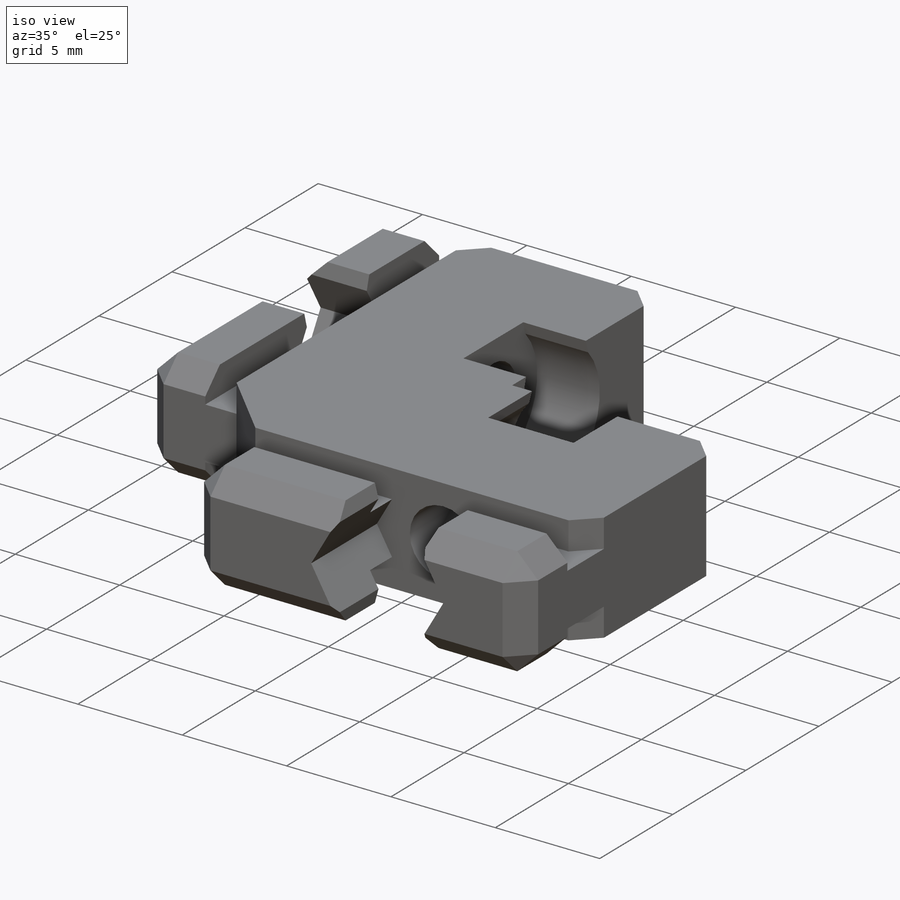
[diagram: iso view]
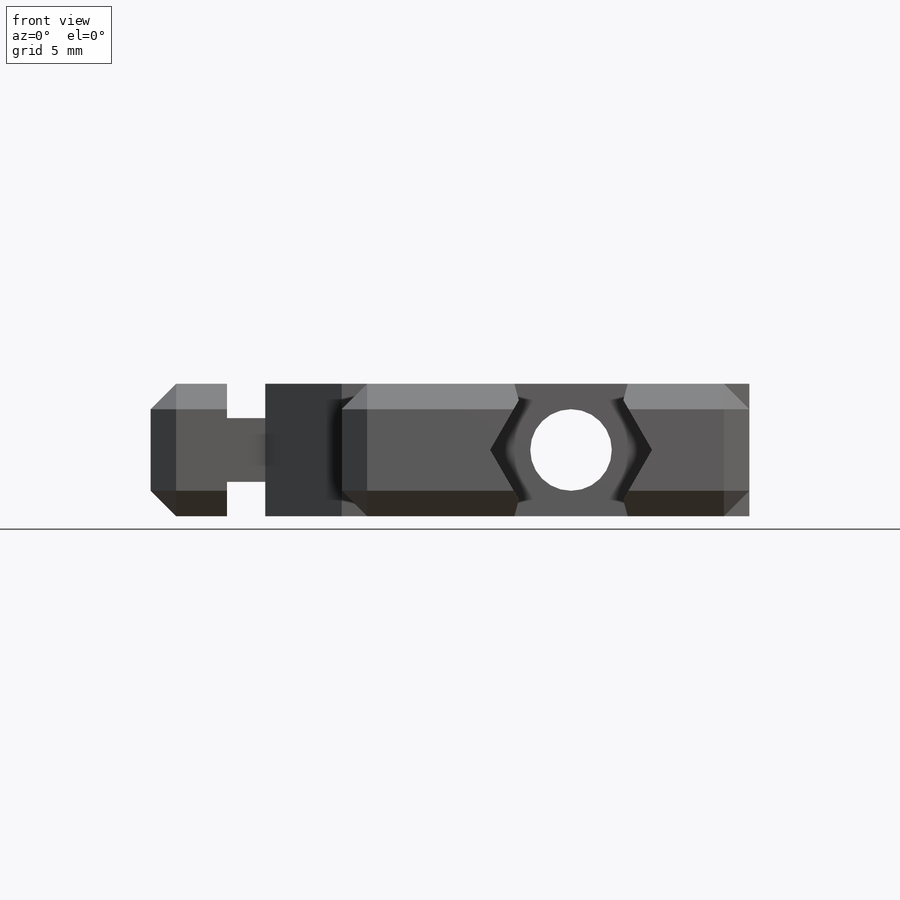
[diagram: front view]
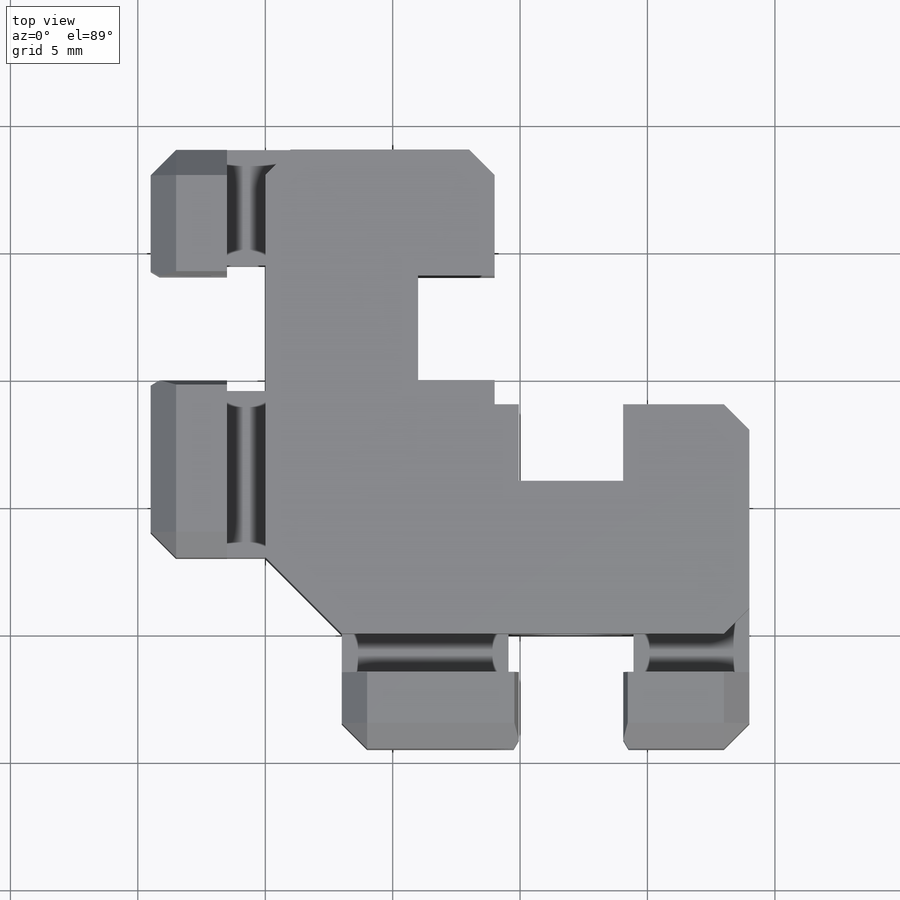
[diagram: top view]
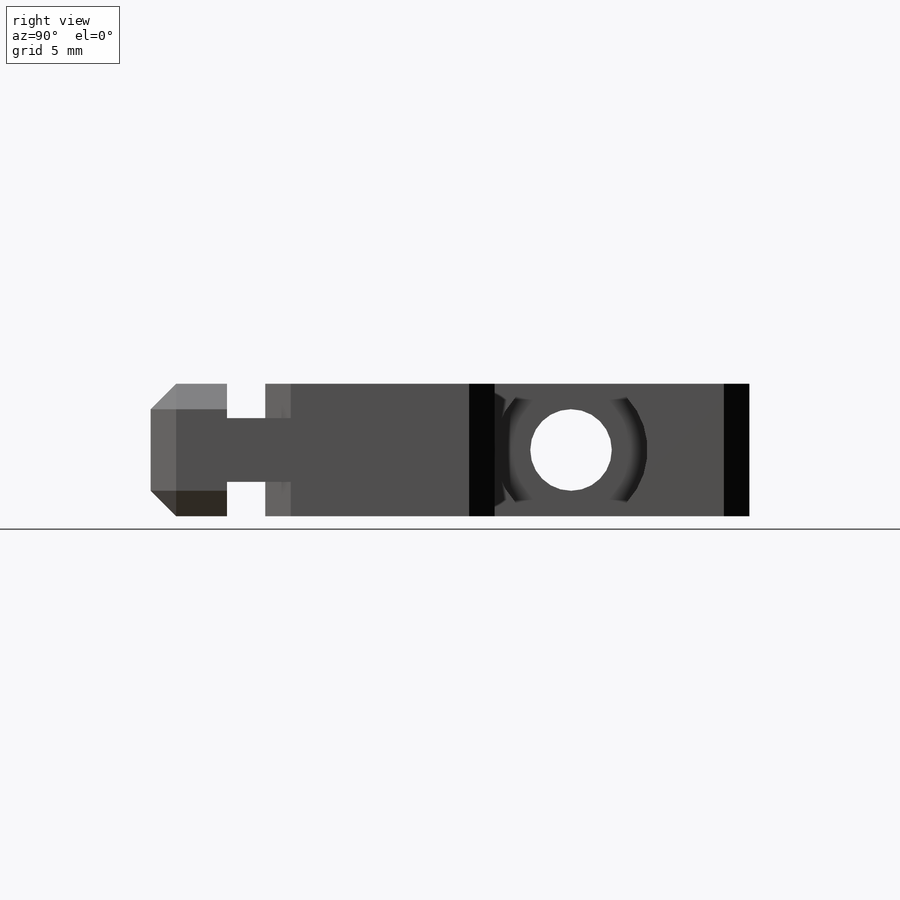
[diagram: right view]
SOLIDWORKS PART (.sldprt)
format: sldprt  version: not decoded by parser v0  size: 336,896 bytes
history: native  units: mm
features: sketch x5, cut_extrude x3, extrude x2, chamfer x2, material x1, plane x1, mirror x1 (+12 scaffold rows collapsed)
feature tree (27):
  scaffold x12  (default folders/planes/origin — collapsed)
  material  "Material <not specified>"
  sketch  "Sketch1"  dims[c1.D1=~32.201482mm c2.D1=45.0deg c2.D2=9.0mm c2.D3=16.0mm c2.D4=10.0mm]
  extrude  "Boss-Extrude1"  Depth=5.2mm
  sketch  "Sketch2"  dims[D1=1.5mm D2=2.5mm D3=3.0mm]
  extrude  "Boss-Extrude2"  Depth=16mm
  sketch  "Sketch3"  dims[D1=3.2mm D2=7.0mm]
  cut_extrude  "Cut-Extrude1"  [1 undecoded]
  sketch  "Sketch4"  dims[D1=5.5mm]
  cut_extrude  "Cut-Extrude2"  Depth=4.5mm
  sketch  "Sketch5"  dims[D1=6.0mm]
  cut_extrude  "Cut-Extrude3"  Depth=3mm
  plane  "Plane1"
  mirror  "Mirror1"
  chamfer  "Chamfer1"  Distance=0.75mm Angle=45deg
  chamfer  "Chamfer2"  Distance=1mm Angle=45deg
decode coverage: 11 of 13 modeling features carry decoded parameters
note: ~ marks probable driven/reference dimensions
note: 1 parameter value undecoded
note: suppression state not decoded; provenance and decode notes live in map.json
